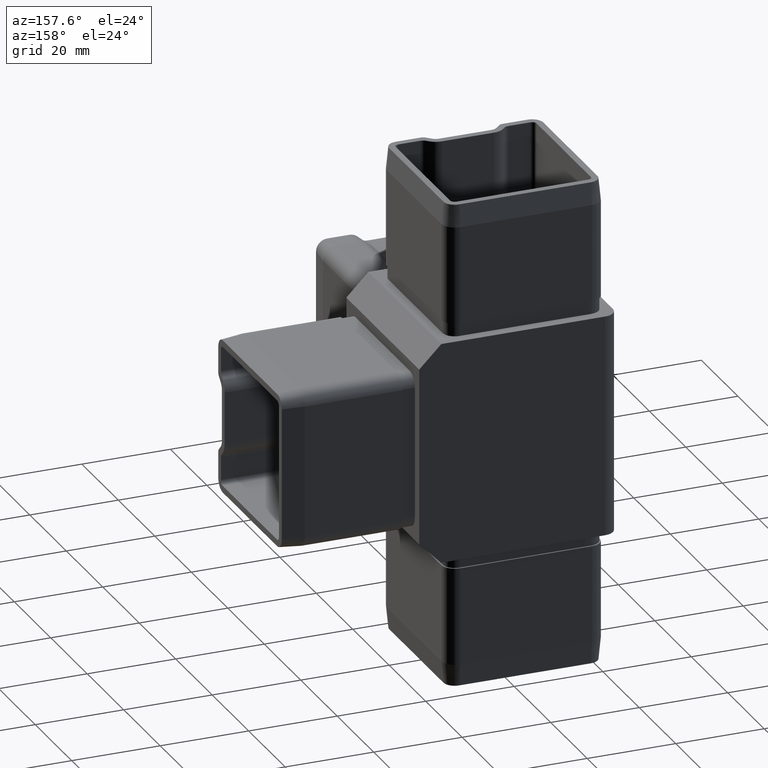
[diagram: clean part render]
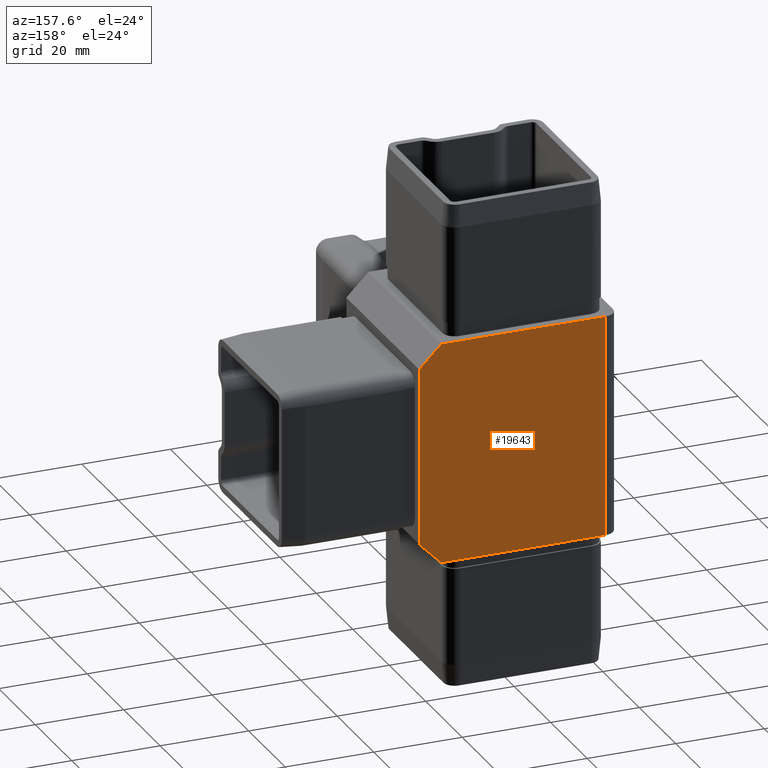
[diagram: same view with one face highlighted and labeled with its STEP entity id]
A machine part, auxiliary view. The second image highlights one B-rep face of the part: STEP entity #19643.
In plain terms, the highlighted planar face has unit normal (-0, -1, 0).
Its self-contained STEP definition (entity closure, byte-faithful):
#279 = CARTESIAN_POINT ( 'NONE',  ( -22.50000000000000700, 22.49999999999999600, -25.00000000000000000 ) ) ;
#773 = DIRECTION ( 'NONE',  ( 1.000000000000000000, -7.709882115452476900E-017, 0.0000000000000000000 ) ) ;
#808 = ORIENTED_EDGE ( 'NONE', *, *, #4351, .F. ) ;
#858 = FACE_OUTER_BOUND ( 'NONE', #12667, .T. ) ;
#942 = CARTESIAN_POINT ( 'NONE',  ( -19.50000000000000700, 22.49999999999999600, 25.00000000000000000 ) ) ;
#958 = VECTOR ( 'NONE', #9925, 1000.000000000000000 ) ;
#1350 = CARTESIAN_POINT ( 'NONE',  ( -19.50000000000000700, 22.49999999999999600, 25.00000000000000000 ) ) ;
#1743 = DIRECTION ( 'NONE',  ( -0.0000000000000000000, -0.0000000000000000000, -1.000000000000000000 ) ) ;
#4351 = EDGE_CURVE ( 'NONE', #4787, #12004, #8831, .T. ) ;
#4662 = EDGE_CURVE ( 'NONE', #16003, #13810, #10988, .T. ) ;
#4787 = VERTEX_POINT ( 'NONE', #17332 ) ;
#5022 = CARTESIAN_POINT ( 'NONE',  ( -22.50000000000000700, 22.49999999999999600, 25.00000000000000000 ) ) ;
#5410 = VECTOR ( 'NONE', #17891, 1000.000000000000000 ) ;
#5730 = DIRECTION ( 'NONE',  ( -0.7071067811865491300, 5.451709925985343800E-017, -0.7071067811865459100 ) ) ;
#5775 = ORIENTED_EDGE ( 'NONE', *, *, #11242, .T. ) ;
#6062 = CARTESIAN_POINT ( 'NONE',  ( 22.49999999999999600, 22.49999999999999300, 19.99999999999997500 ) ) ;
#6149 = ORIENTED_EDGE ( 'NONE', *, *, #4662, .T. ) ;
#6162 = LINE ( 'NONE', #8810, #5410 ) ;
#6215 = VERTEX_POINT ( 'NONE', #11471 ) ;
#6489 = CARTESIAN_POINT ( 'NONE',  ( 17.49999999999995400, 22.49999999999999300, -25.00000000000000000 ) ) ;
#6816 = VECTOR ( 'NONE', #5730, 1000.000000000000000 ) ;
#6927 = VECTOR ( 'NONE', #1743, 1000.000000000000000 ) ;
#7063 = LINE ( 'NONE', #279, #19654 ) ;
#7355 = CARTESIAN_POINT ( 'NONE',  ( -22.50000000000000700, 22.49999999999999600, 25.00000000000000000 ) ) ;
#7508 = ORIENTED_EDGE ( 'NONE', *, *, #16516, .T. ) ;
#8004 = VERTEX_POINT ( 'NONE', #6489 ) ;
#8308 = PLANE ( 'NONE',  #11377 ) ;
#8805 = DIRECTION ( 'NONE',  ( -1.000000000000000000, 7.709882115452476900E-017, -0.0000000000000000000 ) ) ;
#8810 = CARTESIAN_POINT ( 'NONE',  ( 17.49999999999999300, 22.49999999999999300, 24.99999999999999600 ) ) ;
#8831 = LINE ( 'NONE', #7355, #9321 ) ;
#9016 = LINE ( 'NONE', #942, #958 ) ;
#9321 = VECTOR ( 'NONE', #8805, 1000.000000000000000 ) ;
#9925 = DIRECTION ( 'NONE',  ( -0.0000000000000000000, -0.0000000000000000000, 1.000000000000000000 ) ) ;
#10720 = CARTESIAN_POINT ( 'NONE',  ( 22.49999999999999600, 22.49999999999999300, 25.00000000000000000 ) ) ;
#10988 = LINE ( 'NONE', #10720, #6927 ) ;
#11242 = EDGE_CURVE ( 'NONE', #8004, #6215, #7063, .T. ) ;
#11377 = AXIS2_PLACEMENT_3D ( 'NONE', #5022, #18852, #773 ) ;
#11451 = EDGE_CURVE ( 'NONE', #13810, #8004, #12975, .T. ) ;
#11471 = CARTESIAN_POINT ( 'NONE',  ( -19.50000000000000700, 22.49999999999999600, -25.00000000000000000 ) ) ;
#11560 = ORIENTED_EDGE ( 'NONE', *, *, #11451, .T. ) ;
#12004 = VERTEX_POINT ( 'NONE', #1350 ) ;
#12667 = EDGE_LOOP ( 'NONE', ( #5775, #15350, #808, #7508, #6149, #11560 ) ) ;
#12975 = LINE ( 'NONE', #16236, #6816 ) ;
#13810 = VERTEX_POINT ( 'NONE', #18677 ) ;
#15350 = ORIENTED_EDGE ( 'NONE', *, *, #15487, .T. ) ;
#15487 = EDGE_CURVE ( 'NONE', #6215, #12004, #9016, .T. ) ;
#16003 = VERTEX_POINT ( 'NONE', #6062 ) ;
#16236 = CARTESIAN_POINT ( 'NONE',  ( 22.49999999999999600, 22.49999999999999300, -19.99999999999999600 ) ) ;
#16516 = EDGE_CURVE ( 'NONE', #4787, #16003, #6162, .T. ) ;
#17332 = CARTESIAN_POINT ( 'NONE',  ( 17.49999999999999600, 22.49999999999999300, 25.00000000000000000 ) ) ;
#17891 = DIRECTION ( 'NONE',  ( 0.7071067811865462400, -5.451709925985321600E-017, -0.7071067811865489100 ) ) ;
#18677 = CARTESIAN_POINT ( 'NONE',  ( 22.49999999999999600, 22.49999999999999300, -19.99999999999999600 ) ) ;
#18812 = DIRECTION ( 'NONE',  ( -1.000000000000000000, 7.709882115452476900E-017, -0.0000000000000000000 ) ) ;
#18852 = DIRECTION ( 'NONE',  ( -7.709882115452476900E-017, -1.000000000000000000, 0.0000000000000000000 ) ) ;
#19643 = ADVANCED_FACE ( 'NONE', ( #858 ), #8308, .F. ) ;
#19654 = VECTOR ( 'NONE', #18812, 1000.000000000000000 ) ;